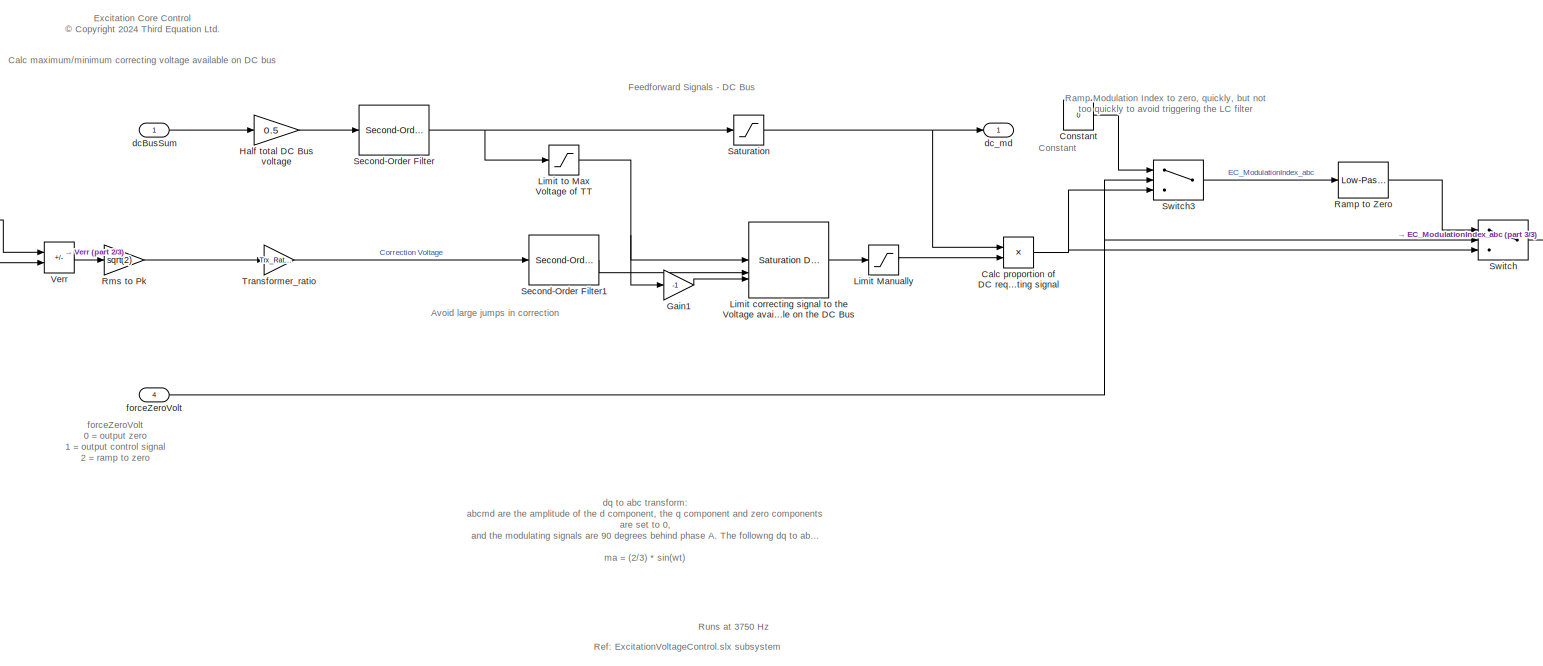
[diagram: root canvas - part 1/3, most of the canvas]
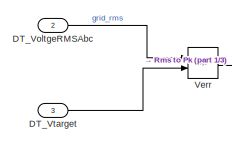
[diagram: root canvas - part 2/3, middle left region]
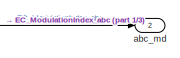
[diagram: root canvas - part 3/3, middle right region]
MODEL slx_1560ab640bb7
KIND model
BLOCK [Product] Calc proportion of DC required for correcting signal
  Inputs = /*
  OutDataTypeStr = single
BLOCK [Constant] Constant
  OutDataTypeStr = single
  Value = 0
BLOCK [Inport] DT_VoltgeRMSAbc
  OutDataTypeStr = single
  Port = 2
  PortDimensions = 3
  Unit = V
BLOCK [Inport] DT_Vtarget
  OutDataTypeStr = single
  Port = 3
  PortDimensions = 3
  Unit = V
BLOCK [Gain] Gain1
  Gain = -1
  OutDataTypeStr = single
  ParamDataTypeStr = single
BLOCK [Gain] Half total DC Bus voltage
  Gain = 0.5
  OutDataTypeStr = single
  ParamDataTypeStr = single
BLOCK [Saturate] Limit Manually
  LowerLimit = -Max_DC_limit
  OutDataTypeStr = single
  UpperLimit = Max_DC_limit
BLOCK [Reference] Limit correcting signal to the Voltage available on the DC Bus  REF=simulink/Discontinuities/Saturation
Dynamic
  SourceBlock = simulink/Discontinuities/Saturation\nDynamic
  SourceType = Saturation Dynamic
BLOCK [Saturate] Limit to Max Voltage of TT
  LowerLimit = 0
  OutDataTypeStr = single
  UpperLimit = Tr_max_v
BLOCK [Reference] Ramp to Zero  REF=eeGeneralControl/Low-Pass Filter
(Discrete or Continuous)
  SourceBlock = eeGeneralControl/Low-Pass Filter\n(Discrete or Continuous)
  SourceType = Low-Pass Filter (Discrete or Continuous)
BLOCK [Gain] Rms to Pk
  Gain = sqrt(2)
  OutDataTypeStr = single
  ParamDataTypeStr = single
BLOCK [Saturate] Saturation
  LowerLimit = DC_ff_min
  OutDataTypeStr = single
  UpperLimit = DC_ff_max
BLOCK [Reference] Second-Order Filter  REF=eeGeneralControl/Second-Order Filter
  SourceBlock = eeGeneralControl/Second-Order Filter
  SourceType = Second-Order Filter
BLOCK [Reference] Second-Order Filter1  REF=eeGeneralControl/Second-Order Filter
  SourceBlock = eeGeneralControl/Second-Order Filter
  SourceType = Second-Order Filter
BLOCK [Switch] Switch
  InputSameDT = off
  OutDataTypeStr = single
  SaturateOnIntegerOverflow = off
  Threshold = 2
BLOCK [Switch] Switch3
  InputSameDT = off
  OutDataTypeStr = single
  SaturateOnIntegerOverflow = off
  Threshold = 2
BLOCK [Gain] Transformer_ratio
  Gain = Trx_Ratio
BLOCK [Sum] Verr
  AccumDataTypeStr = single
  IconShape = rectangular
  Inputs = -+
  OutDataTypeStr = single
BLOCK [Outport] abc_md
  OutDataTypeStr = single
  Port = 2
  PortDimensions = 3
  Unit = 1
BLOCK [Inport] dcBusSum
  OutDataTypeStr = single
  PortDimensions = 1
  Unit = V
BLOCK [Outport] dc_md
  OutDataTypeStr = single
  PortDimensions = 1
  Unit = 1
BLOCK [Inport] forceZeroVolt
  OutDataTypeStr = uint8
  Port = 4
  PortDimensions = 1
ANNOTATION (root): Excitation Core Control <copyright redacted>
ANNOTATION (root): Ramp Modulation Index to zero, quickly, but not too quickly to avoid triggering the LC filter
ANNOTATION (root): forceZeroVolt 0 = output zero 1 = output control signal 2 = ramp to zero
ANNOTATION (root): Avoid large jumps in correction
ANNOTATION (root): Runs at 3750 Hz
ANNOTATION (root): Constant
ANNOTATION (root): Feedforward Signals - DC Bus
ANNOTATION (root): Calc maximum/minimum correcting voltage available on DC bus
ANNOTATION (root): Ref: ExcitationVoltageControl.slx subsystem
ANNOTATION (root): dq to abc transform: abcmd are the amplitude of the d component, the q component and zero components are set to 0, and the modulating signals are 90 degrees behind phase A. The followng dq to abc reduced equations apply : ma = (2/3) * sin(wt) mb = (2/3) * sin(wt - 2pi/3) mc = (2/3) * sin(wt + 2pi/3)
NET Calc proportion of DC required for correcting signal:1 -> Switch3:3, Switch:3
LINE Constant:1 -> Switch3:1
LINE DT_VoltgeRMSAbc:1 -> Verr:1
LINE DT_Vtarget:1 -> Verr:2
LINE Gain1:1 -> Limit correcting signal to the Voltage available on the DC Bus:3
LINE Half total DC Bus voltage:1 -> Second-Order Filter:1
LINE Limit Manually:1 -> Calc proportion of DC required for correcting signal:2
LINE Limit correcting signal to the Voltage available on the DC Bus:1 -> Limit Manually:1
NET Limit to Max Voltage of TT:1 -> Gain1:1, Limit correcting signal to the Voltage available on the DC Bus:1
LINE Ramp to Zero:1 -> Switch:1
LINE Rms to Pk:1 -> Transformer_ratio:1
NET Saturation:1 -> Calc proportion of DC required for correcting signal:1, dc_md:1
LINE Second-Order Filter1:1 -> Limit correcting signal to the Voltage available on the DC Bus:2
NET Second-Order Filter:1 -> Limit to Max Voltage of TT:1, Saturation:1
LINE Switch3:1 -> Ramp to Zero:1
LINE Switch:1 -> abc_md:1
LINE Transformer_ratio:1 -> Second-Order Filter1:1
LINE Verr:1 -> Rms to Pk:1
LINE dcBusSum:1 -> Half total DC Bus voltage:1
NET forceZeroVolt:1 -> Switch3:2, Switch:2
note: NET lines group one-source signal fan-out (src -> all destinations, sorted); 1:1 wires keep LINE
